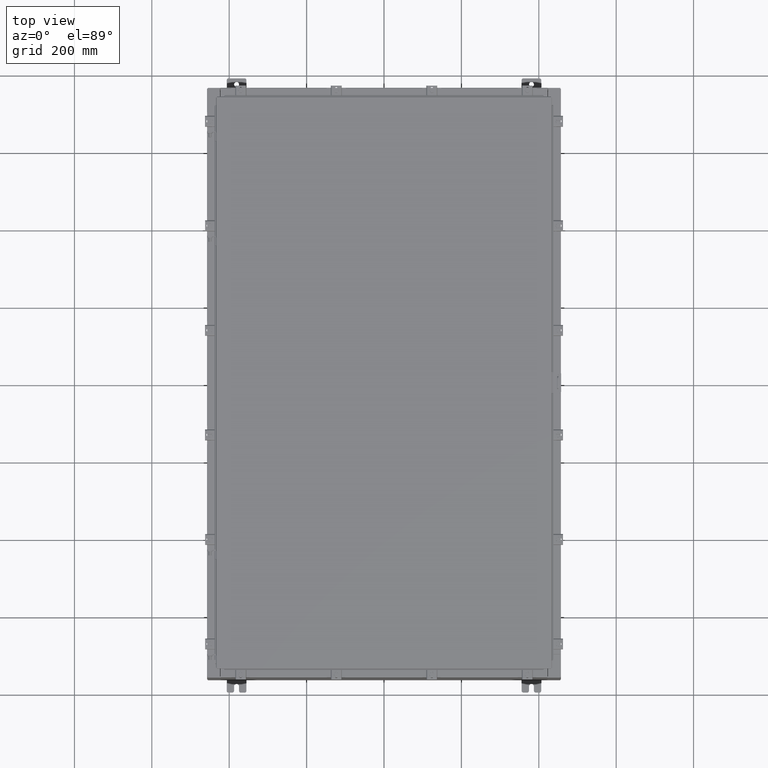
[diagram: clean part render]
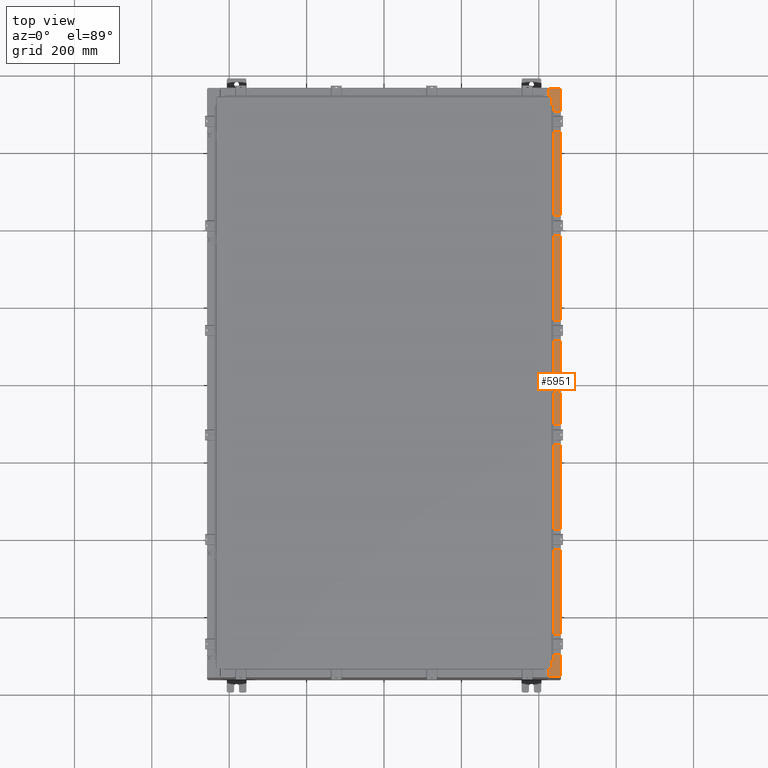
[diagram: same view with one face highlighted and labeled with its STEP entity id]
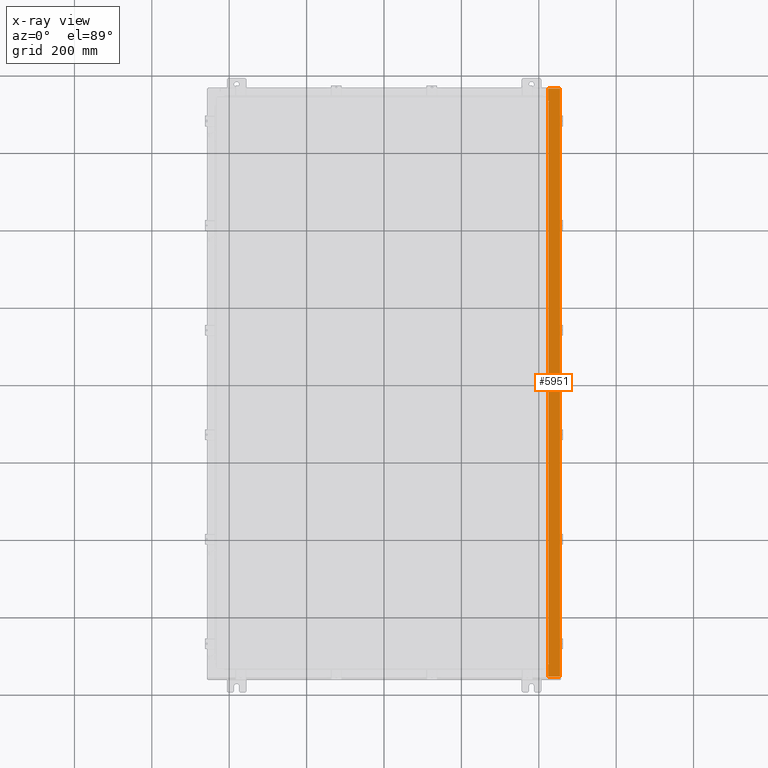
[diagram: x-ray of the same camera — body ghosted, the highlighted face saturated]
A machine part, top view. The second image highlights one B-rep face of the part: STEP entity #5951.
The next image is the same camera in x-ray: the body ghosted, the highlighted face saturated — about 0% of this face is hidden behind the body in this view.
In plain terms, the highlighted planar face has unit normal (-0, -0, -1).
Its self-contained STEP definition (entity closure, byte-faithful):
#160 = VECTOR ( 'NONE', #450, 39.37007874015748100 ) ;
#256 = CARTESIAN_POINT ( 'NONE',  ( 16.75005000000005500, -28.59375000000001100, 15.92530000000000500 ) ) ;
#450 = DIRECTION ( 'NONE',  ( -1.000000000000000000, 2.430865342914509000E-063, 5.349571789159789300E-015 ) ) ;
#518 = LINE ( 'NONE', #256, #6176 ) ;
#797 = ORIENTED_EDGE ( 'NONE', *, *, #22704, .T. ) ;
#855 = EDGE_CURVE ( 'NONE', #26471, #8268, #17143, .T. ) ;
#1094 = CIRCLE ( 'NONE', #7234, 0.01867499999999949400 ) ;
#1123 = FACE_OUTER_BOUND ( 'NONE', #23308, .T. ) ;
#1175 = CARTESIAN_POINT ( 'NONE',  ( 16.69970000000005300, 28.63109999999997200, 15.92530000000000500 ) ) ;
#1715 = LINE ( 'NONE', #18213, #12376 ) ;
#1992 = EDGE_CURVE ( 'NONE', #13570, #14824, #12095, .T. ) ;
#2294 = PLANE ( 'NONE',  #12637 ) ;
#2295 = DIRECTION ( 'NONE',  ( -1.000000000000000000, 0.0000000000000000000, 0.0000000000000000000 ) ) ;
#2830 = VERTEX_POINT ( 'NONE', #13149 ) ;
#2935 = VERTEX_POINT ( 'NONE', #9229 ) ;
#4291 = CARTESIAN_POINT ( 'NONE',  ( 16.71270000000005500, -28.59375000000001100, 15.92530000000000500 ) ) ;
#4295 = EDGE_CURVE ( 'NONE', #9353, #2935, #12165, .T. ) ;
#4431 = DIRECTION ( 'NONE',  ( -1.000000000000000000, 0.0000000000000000000, 5.349571789159788500E-015 ) ) ;
#4576 = ORIENTED_EDGE ( 'NONE', *, *, #21308, .F. ) ;
#4685 = CARTESIAN_POINT ( 'NONE',  ( 16.75005000000005500, 28.61242499999997000, 15.92530000000000500 ) ) ;
#5007 = ORIENTED_EDGE ( 'NONE', *, *, #1992, .F. ) ;
#5118 = EDGE_CURVE ( 'NONE', #14824, #15270, #11481, .T. ) ;
#5172 = VERTEX_POINT ( 'NONE', #27527 ) ;
#5951 = ADVANCED_FACE ( 'NONE', ( #1123 ), #2294, .F. ) ;
#6176 = VECTOR ( 'NONE', #2295, 39.37007874015748100 ) ;
#6374 = CARTESIAN_POINT ( 'NONE',  ( 16.69970000000005300, 5.815213060988728800E-016, 15.92530000000000500 ) ) ;
#6395 = VECTOR ( 'NONE', #13669, 39.37007874015748100 ) ;
#6404 = LINE ( 'NONE', #26341, #17750 ) ;
#6594 = EDGE_CURVE ( 'NONE', #15270, #27285, #1094, .T. ) ;
#6805 = DIRECTION ( 'NONE',  ( 1.000000000000000000, 0.0000000000000000000, 0.0000000000000000000 ) ) ;
#7170 = DIRECTION ( 'NONE',  ( 1.000000000000000000, 0.0000000000000000000, 0.0000000000000000000 ) ) ;
#7228 = CARTESIAN_POINT ( 'NONE',  ( 16.69970000000005300, 5.815213060988728800E-016, 15.92530000000000500 ) ) ;
#7234 = AXIS2_PLACEMENT_3D ( 'NONE', #4685, #19587, #6805 ) ;
#8225 = DIRECTION ( 'NONE',  ( 1.000000000000000000, 0.0000000000000000000, 0.0000000000000000000 ) ) ;
#8268 = VERTEX_POINT ( 'NONE', #14634 ) ;
#8333 = ORIENTED_EDGE ( 'NONE', *, *, #19404, .T. ) ;
#8363 = LINE ( 'NONE', #6374, #13330 ) ;
#9229 = CARTESIAN_POINT ( 'NONE',  ( 16.69970000000005300, 29.92529999999999300, 15.92530000000000500 ) ) ;
#9353 = VERTEX_POINT ( 'NONE', #22302 ) ;
#9714 = DIRECTION ( 'NONE',  ( 5.349571789159788500E-015, 3.651556366905946600E-017, 1.000000000000000000 ) ) ;
#9737 = CARTESIAN_POINT ( 'NONE',  ( 16.75005000000005500, -28.61242500000000900, 15.92530000000000500 ) ) ;
#10277 = LINE ( 'NONE', #7228, #20964 ) ;
#10765 = AXIS2_PLACEMENT_3D ( 'NONE', #9737, #9714, #7170 ) ;
#10779 = LINE ( 'NONE', #10987, #21449 ) ;
#10987 = CARTESIAN_POINT ( 'NONE',  ( 8.545434926991848800E-014, -29.92530000000001100, 15.92530000000009800 ) ) ;
#11082 = ORIENTED_EDGE ( 'NONE', *, *, #6594, .F. ) ;
#11481 = LINE ( 'NONE', #18871, #17166 ) ;
#12095 = LINE ( 'NONE', #14340, #6395 ) ;
#12165 = LINE ( 'NONE', #19534, #160 ) ;
#12376 = VECTOR ( 'NONE', #24440, 39.37007874015748100 ) ;
#12534 = EDGE_CURVE ( 'NONE', #27285, #20693, #6404, .T. ) ;
#12637 = AXIS2_PLACEMENT_3D ( 'NONE', #12907, #25690, #4431 ) ;
#12907 = CARTESIAN_POINT ( 'NONE',  ( 8.545434926991848800E-014, 5.815213060988761300E-016, 15.92530000000009600 ) ) ;
#13103 = DIRECTION ( 'NONE',  ( 1.000000000000000000, -2.430865342914509000E-063, -5.349571789159789300E-015 ) ) ;
#13149 = CARTESIAN_POINT ( 'NONE',  ( 16.69970000000005300, -29.92530000000001100, 15.92530000000000900 ) ) ;
#13330 = VECTOR ( 'NONE', #23472, 39.37007874015748100 ) ;
#13561 = DIRECTION ( 'NONE',  ( -1.000000000000000000, 0.0000000000000000000, 0.0000000000000000000 ) ) ;
#13570 = VERTEX_POINT ( 'NONE', #4291 ) ;
#13669 = DIRECTION ( 'NONE',  ( -0.0000000000000000000, 1.000000000000000000, -0.0000000000000000000 ) ) ;
#13867 = LINE ( 'NONE', #19984, #24572 ) ;
#14340 = CARTESIAN_POINT ( 'NONE',  ( 16.71270000000005500, -28.59375000000000400, 15.92530000000000500 ) ) ;
#14634 = CARTESIAN_POINT ( 'NONE',  ( 16.75005000000005500, -28.59375000000001100, 15.92530000000000500 ) ) ;
#14824 = VERTEX_POINT ( 'NONE', #23118 ) ;
#15270 = VERTEX_POINT ( 'NONE', #19446 ) ;
#16271 = EDGE_CURVE ( 'NONE', #9353, #5172, #1715, .T. ) ;
#16880 = ORIENTED_EDGE ( 'NONE', *, *, #4295, .T. ) ;
#17023 = CARTESIAN_POINT ( 'NONE',  ( 16.75005000000005500, 28.63109999999996800, 15.92530000000000500 ) ) ;
#17054 = ORIENTED_EDGE ( 'NONE', *, *, #17332, .T. ) ;
#17143 = CIRCLE ( 'NONE', #10765, 0.01867499999999949400 ) ;
#17166 = VECTOR ( 'NONE', #8225, 39.37007874015748100 ) ;
#17332 = EDGE_CURVE ( 'NONE', #18549, #2830, #8363, .T. ) ;
#17750 = VECTOR ( 'NONE', #13561, 39.37007874015748100 ) ;
#18213 = CARTESIAN_POINT ( 'NONE',  ( 17.91230000000005200, -29.92530000000001100, 15.92530000000000200 ) ) ;
#18549 = VERTEX_POINT ( 'NONE', #18905 ) ;
#18871 = CARTESIAN_POINT ( 'NONE',  ( 16.71270000000005500, 28.59374999999996800, 15.92530000000000500 ) ) ;
#18905 = CARTESIAN_POINT ( 'NONE',  ( 16.69970000000005300, -28.63110000000000700, 15.92530000000000500 ) ) ;
#19404 = EDGE_CURVE ( 'NONE', #2935, #20693, #10277, .T. ) ;
#19446 = CARTESIAN_POINT ( 'NONE',  ( 16.75005000000005500, 28.59374999999996800, 15.92530000000000500 ) ) ;
#19534 = CARTESIAN_POINT ( 'NONE',  ( 8.545434926991848800E-014, 29.92529999999999300, 15.92530000000009600 ) ) ;
#19587 = DIRECTION ( 'NONE',  ( 5.349571789159788500E-015, 3.651556366905946600E-017, 1.000000000000000000 ) ) ;
#19984 = CARTESIAN_POINT ( 'NONE',  ( 16.69970000000005300, -28.63110000000000700, 15.92530000000000500 ) ) ;
#20005 = EDGE_CURVE ( 'NONE', #18549, #26471, #13867, .T. ) ;
#20693 = VERTEX_POINT ( 'NONE', #1175 ) ;
#20964 = VECTOR ( 'NONE', #24315, 39.37007874015748100 ) ;
#21308 = EDGE_CURVE ( 'NONE', #8268, #13570, #518, .T. ) ;
#21449 = VECTOR ( 'NONE', #13103, 39.37007874015748100 ) ;
#22157 = DIRECTION ( 'NONE',  ( 1.000000000000000000, 0.0000000000000000000, 0.0000000000000000000 ) ) ;
#22302 = CARTESIAN_POINT ( 'NONE',  ( 17.91230000000005200, 29.92529999999999300, 15.92530000000000000 ) ) ;
#22704 = EDGE_CURVE ( 'NONE', #2830, #5172, #10779, .T. ) ;
#23118 = CARTESIAN_POINT ( 'NONE',  ( 16.71270000000005500, 28.59374999999996800, 15.92530000000000500 ) ) ;
#23308 = EDGE_LOOP ( 'NONE', ( #24497, #17054, #797, #24298, #16880, #8333, #24555, #11082, #25028, #5007, #4576, #23463 ) ) ;
#23463 = ORIENTED_EDGE ( 'NONE', *, *, #855, .F. ) ;
#23472 = DIRECTION ( 'NONE',  ( 0.0000000000000000000, -1.000000000000000000, 3.651556366905946600E-017 ) ) ;
#24298 = ORIENTED_EDGE ( 'NONE', *, *, #16271, .F. ) ;
#24315 = DIRECTION ( 'NONE',  ( 0.0000000000000000000, -1.000000000000000000, 3.651556366905946600E-017 ) ) ;
#24440 = DIRECTION ( 'NONE',  ( 3.651556366905947300E-017, -1.000000000000000000, 3.651556366905926900E-017 ) ) ;
#24497 = ORIENTED_EDGE ( 'NONE', *, *, #20005, .F. ) ;
#24555 = ORIENTED_EDGE ( 'NONE', *, *, #12534, .F. ) ;
#24572 = VECTOR ( 'NONE', #22157, 39.37007874015748100 ) ;
#24635 = CARTESIAN_POINT ( 'NONE',  ( 16.75005000000005500, -28.63110000000000700, 15.92530000000000500 ) ) ;
#25028 = ORIENTED_EDGE ( 'NONE', *, *, #5118, .F. ) ;
#25690 = DIRECTION ( 'NONE',  ( -5.349571789159788500E-015, -3.651556366905946600E-017, -1.000000000000000000 ) ) ;
#26341 = CARTESIAN_POINT ( 'NONE',  ( 16.75005000000005500, 28.63109999999996800, 15.92530000000000500 ) ) ;
#26471 = VERTEX_POINT ( 'NONE', #24635 ) ;
#27285 = VERTEX_POINT ( 'NONE', #17023 ) ;
#27527 = CARTESIAN_POINT ( 'NONE',  ( 17.91230000000005200, -29.92530000000001100, 15.92530000000000200 ) ) ;